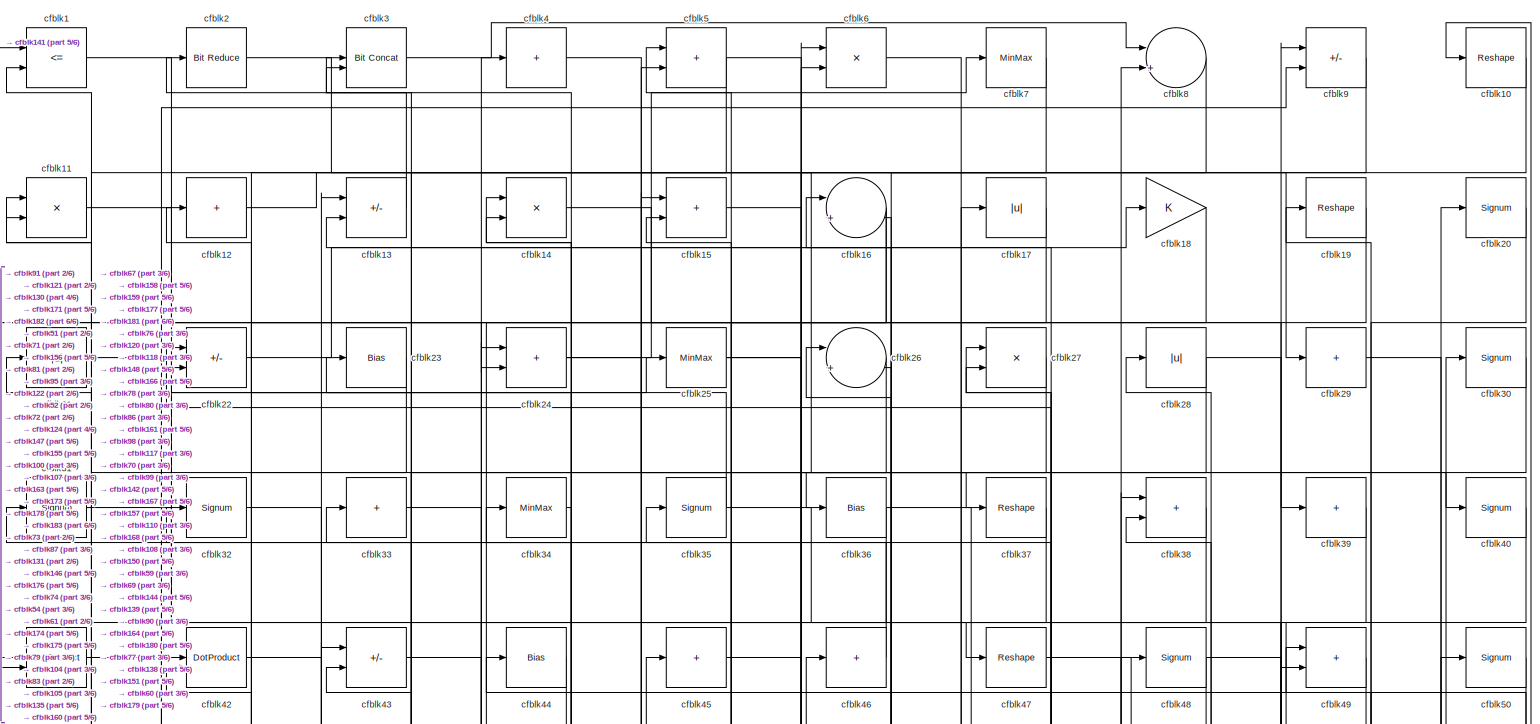
[diagram: root canvas - part 1/6, full width, top band]
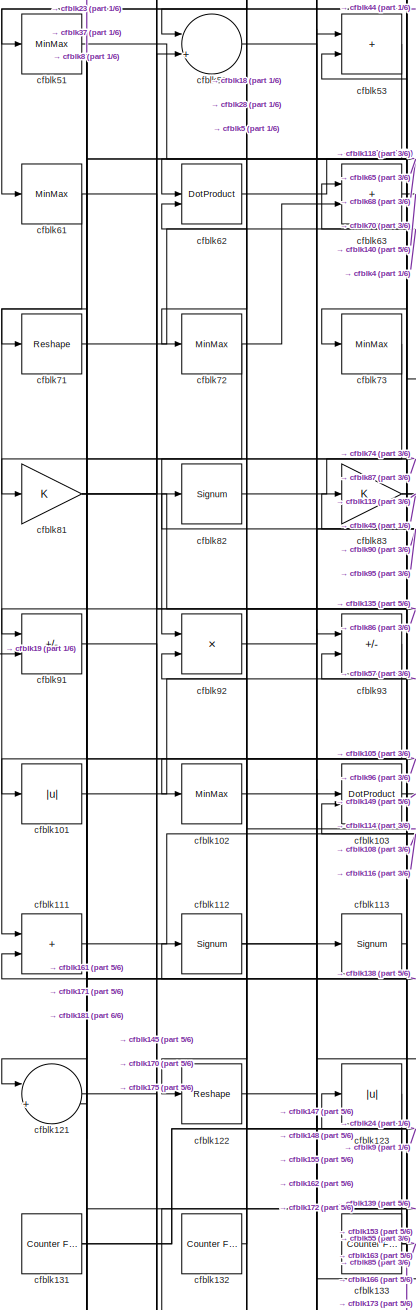
[diagram: root canvas - part 2/6, middle left region]
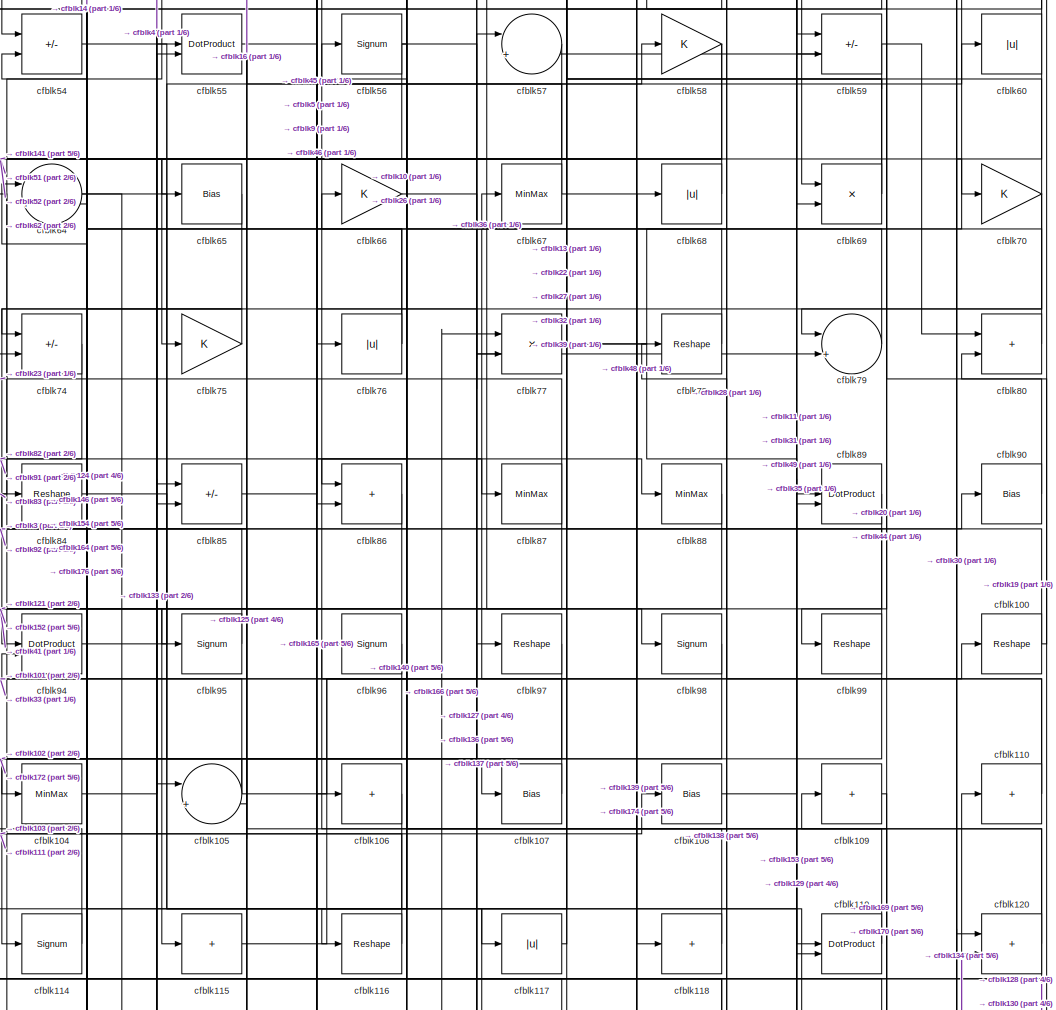
[diagram: root canvas - part 3/6, central region]
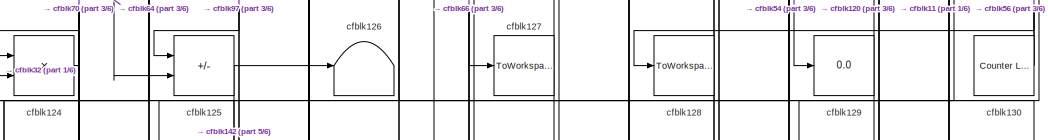
[diagram: root canvas - part 4/6, central region]
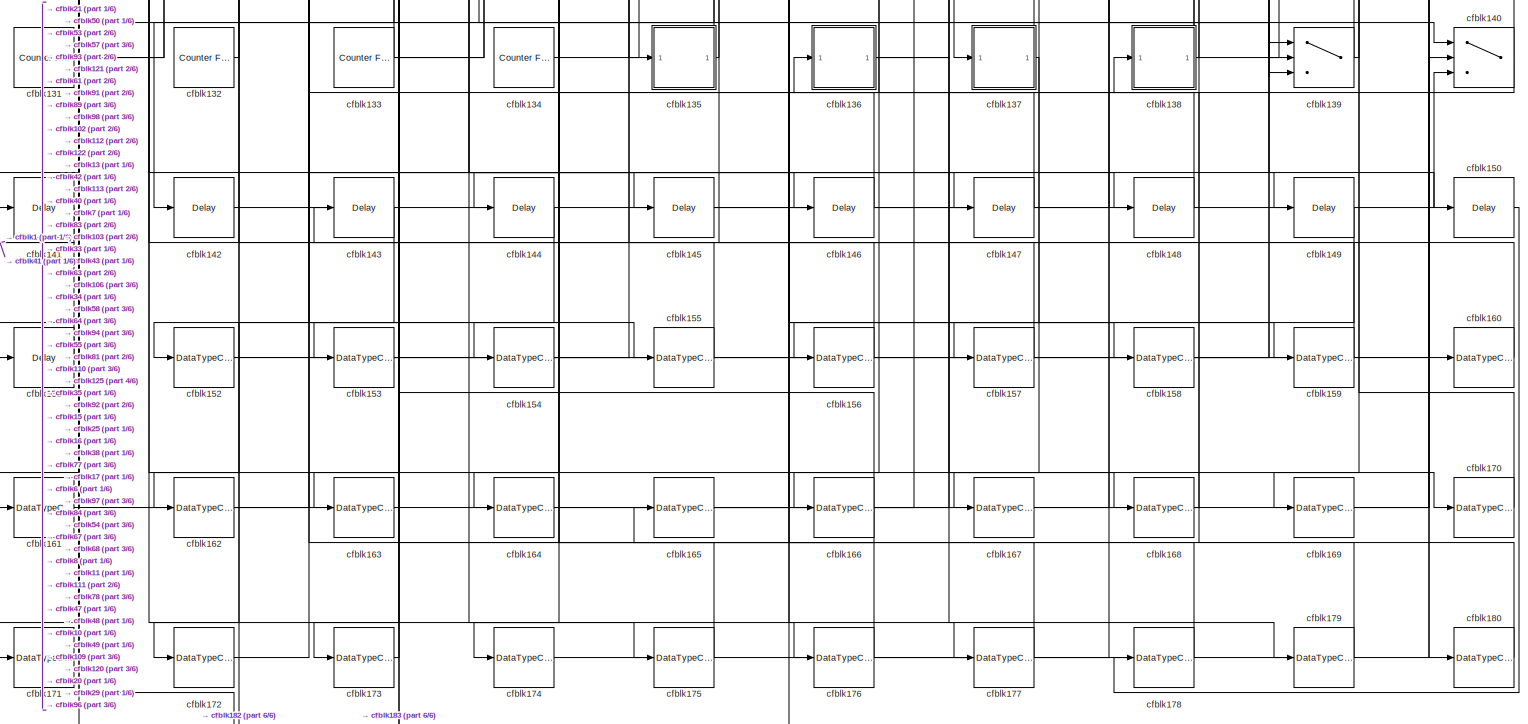
[diagram: root canvas - part 5/6, full width, bottom band]
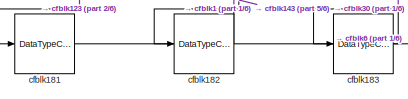
[diagram: root canvas - part 6/6, bottom left region]
MODEL slx_1db6b4678c98
KIND model
CONFIG AbsTol = auto
CONFIG EnableMultiTasking = off
CONFIG FixedStep = auto
CONFIG MaxStep = auto
CONFIG MinStep = auto
CONFIG RelTol = 1e-3
CONFIG SampleTimeConstraint = Unconstrained
CONFIG SolverName = VariableStepAuto
CONFIG StartTime = 0.0
CONFIG StopTime = 10.0
BLOCK [RelationalOperator] cfblk1
  InputSameDT = off
  Operator = <=
  OutDataTypeStr = boolean
BLOCK [Reshape] cfblk10
BLOCK [Reshape] cfblk100
BLOCK [Abs] cfblk101
  SaturateOnIntegerOverflow = off
BLOCK [MinMax] cfblk102
BLOCK [DotProduct] cfblk103
  OutDataTypeStr = Inherit: Inherit via internal rule
BLOCK [MinMax] cfblk104
BLOCK [Sum] cfblk105
  Inputs = |++
BLOCK [Sum] cfblk106
  IconShape = rectangular
  Inputs = +
BLOCK [Bias] cfblk107
  Bias = 0.0
  SaturateOnIntegerOverflow = off
BLOCK [Bias] cfblk108
  Bias = 0.0
  SaturateOnIntegerOverflow = off
BLOCK [Sum] cfblk109
  IconShape = rectangular
  Inputs = +
BLOCK [Product] cfblk11
  Inputs = */
  RndMeth = Zero
  SaturateOnIntegerOverflow = on
BLOCK [Sum] cfblk110
  IconShape = rectangular
  Inputs = +
BLOCK [Sum] cfblk111
  IconShape = rectangular
BLOCK [Signum] cfblk112
BLOCK [Signum] cfblk113
BLOCK [Signum] cfblk114
BLOCK [Sum] cfblk115
  IconShape = rectangular
  Inputs = +
BLOCK [Reshape] cfblk116
BLOCK [Abs] cfblk117
  SaturateOnIntegerOverflow = off
BLOCK [Sum] cfblk118
  IconShape = rectangular
  Inputs = +
BLOCK [DotProduct] cfblk119
  OutDataTypeStr = Inherit: Inherit via internal rule
BLOCK [Sum] cfblk12
  IconShape = rectangular
  Inputs = +
BLOCK [Sum] cfblk120
  IconShape = rectangular
BLOCK [Sum] cfblk121
  Inputs = |++
BLOCK [Reshape] cfblk122
BLOCK [Abs] cfblk123
  SaturateOnIntegerOverflow = off
BLOCK [Product] cfblk124
  Inputs = */
  RndMeth = Zero
  SaturateOnIntegerOverflow = on
BLOCK [Sum] cfblk125
  IconShape = rectangular
  Inputs = +-
BLOCK [Terminator] cfblk126
BLOCK [ToWorkspace] cfblk127
  MaxDataPoints = inf
  SampleTime = -1
  SaveFormat = Timeseries
  VariableName = simout
BLOCK [ToWorkspace] cfblk128
  MaxDataPoints = inf
  SampleTime = -1
  SaveFormat = Timeseries
  VariableName = simout
BLOCK [Display] cfblk129
  Decimation = 1
BLOCK [Sum] cfblk13
  IconShape = rectangular
  Inputs = +-
BLOCK [Reference] cfblk130  REF=hdlsllib/Sources/Counter
Limited
  SourceBlock = hdlsllib/Sources/Counter\nLimited
  SourceType = Counter Limited
BLOCK [Reference] cfblk131  REF=hdlsllib/Sources/Counter
Free-Running
  SourceBlock = hdlsllib/Sources/Counter\nFree-Running
  SourceType = Counter Free-Running
BLOCK [Reference] cfblk132  REF=hdlsllib/Sources/Counter
Free-Running
  SourceBlock = hdlsllib/Sources/Counter\nFree-Running
  SourceType = Counter Free-Running
BLOCK [Reference] cfblk133  REF=hdlsllib/Sources/Counter
Free-Running
  SourceBlock = hdlsllib/Sources/Counter\nFree-Running
  SourceType = Counter Free-Running
BLOCK [Reference] cfblk134  REF=hdlsllib/Sources/Counter
Free-Running
  SourceBlock = hdlsllib/Sources/Counter\nFree-Running
  SourceType = Counter Free-Running
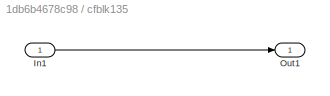
BLOCK [SubSystem] cfblk135
  LibrarySourceBlock = hdlsllib/Ports &\nSubsystems/Subsystem
BLOCK [Inport] cfblk135/In1
BLOCK [Outport] cfblk135/Out1
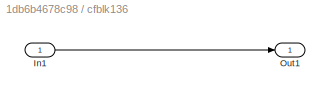
BLOCK [SubSystem] cfblk136
  LibrarySourceBlock = hdlsllib/Ports &\nSubsystems/Subsystem
BLOCK [Inport] cfblk136/In1
BLOCK [Outport] cfblk136/Out1
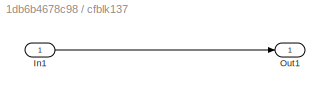
BLOCK [SubSystem] cfblk137
  LibrarySourceBlock = hdlsllib/Ports &\nSubsystems/Subsystem
BLOCK [Inport] cfblk137/In1
BLOCK [Outport] cfblk137/Out1
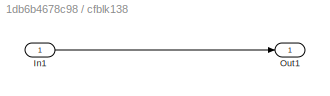
BLOCK [SubSystem] cfblk138
  LibrarySourceBlock = hdlsllib/Ports &\nSubsystems/Subsystem
BLOCK [Inport] cfblk138/In1
BLOCK [Outport] cfblk138/Out1
BLOCK [Switch] cfblk139
  InputSameDT = off
  SaturateOnIntegerOverflow = off
BLOCK [Product] cfblk14
  Inputs = */
  RndMeth = Zero
  SaturateOnIntegerOverflow = on
BLOCK [Switch] cfblk140
  InputSameDT = off
  SaturateOnIntegerOverflow = off
BLOCK [Delay] cfblk141
  InputPortMap = u0
  SampleTime = 1
BLOCK [Delay] cfblk142
  InputPortMap = u0
  SampleTime = 1
BLOCK [Delay] cfblk143
  InputPortMap = u0
  SampleTime = 1
BLOCK [Delay] cfblk144
  InputPortMap = u0
  SampleTime = 1
BLOCK [Delay] cfblk145
  InputPortMap = u0
  SampleTime = 1
BLOCK [Delay] cfblk146
  InputPortMap = u0
  SampleTime = 1
BLOCK [Delay] cfblk147
  InputPortMap = u0
  SampleTime = 1
BLOCK [Delay] cfblk148
  InputPortMap = u0
  SampleTime = 1
BLOCK [Delay] cfblk149
  InputPortMap = u0
  SampleTime = 1
BLOCK [Sum] cfblk15
  IconShape = rectangular
BLOCK [Delay] cfblk150
  InputPortMap = u0
  SampleTime = 1
BLOCK [Delay] cfblk151
  InputPortMap = u0
  SampleTime = 1
BLOCK [DataTypeConversion] cfblk152
  RndMeth = Floor
  SaturateOnIntegerOverflow = off
BLOCK [DataTypeConversion] cfblk153
  OutDataTypeStr = uint8
  RndMeth = Floor
  SaturateOnIntegerOverflow = off
BLOCK [DataTypeConversion] cfblk154
  OutDataTypeStr = uint8
  RndMeth = Floor
  SaturateOnIntegerOverflow = off
BLOCK [DataTypeConversion] cfblk155
  OutDataTypeStr = uint8
  RndMeth = Floor
  SaturateOnIntegerOverflow = off
BLOCK [DataTypeConversion] cfblk156
  OutDataTypeStr = uint8
  RndMeth = Floor
  SaturateOnIntegerOverflow = off
BLOCK [DataTypeConversion] cfblk157
  OutDataTypeStr = uint8
  RndMeth = Floor
  SaturateOnIntegerOverflow = off
BLOCK [DataTypeConversion] cfblk158
  OutDataTypeStr = uint8
  RndMeth = Floor
  SaturateOnIntegerOverflow = off
BLOCK [DataTypeConversion] cfblk159
  OutDataTypeStr = uint8
  RndMeth = Floor
  SaturateOnIntegerOverflow = off
BLOCK [Sum] cfblk16
  Inputs = |++
BLOCK [DataTypeConversion] cfblk160
  OutDataTypeStr = uint8
  RndMeth = Floor
  SaturateOnIntegerOverflow = off
BLOCK [DataTypeConversion] cfblk161
  OutDataTypeStr = uint8
  RndMeth = Floor
  SaturateOnIntegerOverflow = off
BLOCK [DataTypeConversion] cfblk162
  OutDataTypeStr = uint8
  RndMeth = Floor
  SaturateOnIntegerOverflow = off
BLOCK [DataTypeConversion] cfblk163
  OutDataTypeStr = uint8
  RndMeth = Floor
  SaturateOnIntegerOverflow = off
BLOCK [DataTypeConversion] cfblk164
  OutDataTypeStr = uint8
  RndMeth = Floor
  SaturateOnIntegerOverflow = off
BLOCK [DataTypeConversion] cfblk165
  OutDataTypeStr = uint8
  RndMeth = Floor
  SaturateOnIntegerOverflow = off
BLOCK [DataTypeConversion] cfblk166
  RndMeth = Floor
  SaturateOnIntegerOverflow = off
BLOCK [DataTypeConversion] cfblk167
  OutDataTypeStr = uint8
  RndMeth = Floor
  SaturateOnIntegerOverflow = off
BLOCK [DataTypeConversion] cfblk168
  OutDataTypeStr = uint8
  RndMeth = Floor
  SaturateOnIntegerOverflow = off
BLOCK [DataTypeConversion] cfblk169
  OutDataTypeStr = uint8
  RndMeth = Floor
  SaturateOnIntegerOverflow = off
BLOCK [Abs] cfblk17
  SaturateOnIntegerOverflow = off
BLOCK [DataTypeConversion] cfblk170
  OutDataTypeStr = uint8
  RndMeth = Floor
  SaturateOnIntegerOverflow = off
BLOCK [DataTypeConversion] cfblk171
  OutDataTypeStr = uint8
  RndMeth = Floor
  SaturateOnIntegerOverflow = off
BLOCK [DataTypeConversion] cfblk172
  OutDataTypeStr = uint8
  RndMeth = Floor
  SaturateOnIntegerOverflow = off
BLOCK [DataTypeConversion] cfblk173
  OutDataTypeStr = uint8
  RndMeth = Floor
  SaturateOnIntegerOverflow = off
BLOCK [DataTypeConversion] cfblk174
  OutDataTypeStr = uint8
  RndMeth = Floor
  SaturateOnIntegerOverflow = off
BLOCK [DataTypeConversion] cfblk175
  OutDataTypeStr = uint8
  RndMeth = Floor
  SaturateOnIntegerOverflow = off
BLOCK [DataTypeConversion] cfblk176
  RndMeth = Floor
  SaturateOnIntegerOverflow = off
BLOCK [DataTypeConversion] cfblk177
  OutDataTypeStr = uint8
  RndMeth = Floor
  SaturateOnIntegerOverflow = off
BLOCK [DataTypeConversion] cfblk178
  OutDataTypeStr = uint8
  RndMeth = Floor
  SaturateOnIntegerOverflow = off
BLOCK [DataTypeConversion] cfblk179
  OutDataTypeStr = uint8
  RndMeth = Floor
  SaturateOnIntegerOverflow = off
BLOCK [Gain] cfblk18
BLOCK [DataTypeConversion] cfblk180
  OutDataTypeStr = uint8
  RndMeth = Floor
  SaturateOnIntegerOverflow = off
BLOCK [DataTypeConversion] cfblk181
  OutDataTypeStr = uint8
  RndMeth = Floor
  SaturateOnIntegerOverflow = off
BLOCK [DataTypeConversion] cfblk182
  OutDataTypeStr = uint8
  RndMeth = Floor
  SaturateOnIntegerOverflow = off
BLOCK [DataTypeConversion] cfblk183
  OutDataTypeStr = uint8
  RndMeth = Floor
  SaturateOnIntegerOverflow = off
BLOCK [Reshape] cfblk19
BLOCK [Reference] cfblk2  REF=hdlsllib/Logic and Bit
Operations/Bit Reduce
  SourceBlock = hdlsllib/Logic and Bit\nOperations/Bit Reduce
  SourceType = Bit Reduce
BLOCK [Signum] cfblk20
BLOCK [Abs] cfblk21
  SaturateOnIntegerOverflow = off
BLOCK [Sum] cfblk22
  IconShape = rectangular
  Inputs = +-
BLOCK [Bias] cfblk23
  Bias = 0.0
  SaturateOnIntegerOverflow = off
BLOCK [Sum] cfblk24
  IconShape = rectangular
BLOCK [MinMax] cfblk25
BLOCK [Sum] cfblk26
  Inputs = |++
BLOCK [Product] cfblk27
  Inputs = */
  RndMeth = Zero
  SaturateOnIntegerOverflow = on
BLOCK [Abs] cfblk28
  SaturateOnIntegerOverflow = off
BLOCK [Sum] cfblk29
  IconShape = rectangular
  Inputs = +
BLOCK [Reference] cfblk3  REF=hdlsllib/Logic and Bit
Operations/Bit Concat
  SourceBlock = hdlsllib/Logic and Bit\nOperations/Bit Concat
  SourceType = Bit Concat
BLOCK [Signum] cfblk30
BLOCK [Signum] cfblk31
BLOCK [Signum] cfblk32
BLOCK [Sum] cfblk33
  IconShape = rectangular
  Inputs = +
BLOCK [MinMax] cfblk34
BLOCK [Signum] cfblk35
BLOCK [Bias] cfblk36
  Bias = 0.0
  SaturateOnIntegerOverflow = off
BLOCK [Reshape] cfblk37
BLOCK [Sum] cfblk38
  IconShape = rectangular
BLOCK [Sum] cfblk39
  IconShape = rectangular
  Inputs = +
BLOCK [Sum] cfblk4
  IconShape = rectangular
  Inputs = +
BLOCK [Signum] cfblk40
BLOCK [DotProduct] cfblk41
  OutDataTypeStr = Inherit: Inherit via internal rule
BLOCK [DotProduct] cfblk42
  OutDataTypeStr = Inherit: Inherit via internal rule
BLOCK [Sum] cfblk43
  IconShape = rectangular
  Inputs = +-
BLOCK [Bias] cfblk44
  Bias = 0.0
  SaturateOnIntegerOverflow = off
BLOCK [Sum] cfblk45
  IconShape = rectangular
  Inputs = +
BLOCK [Sum] cfblk46
  IconShape = rectangular
  Inputs = +
BLOCK [Reshape] cfblk47
BLOCK [Signum] cfblk48
BLOCK [Sum] cfblk49
  IconShape = rectangular
BLOCK [Sum] cfblk5
  IconShape = rectangular
BLOCK [Signum] cfblk50
BLOCK [MinMax] cfblk51
BLOCK [Sum] cfblk52
  Inputs = |++
BLOCK [Sum] cfblk53
  IconShape = rectangular
BLOCK [Sum] cfblk54
  IconShape = rectangular
  Inputs = +-
BLOCK [DotProduct] cfblk55
  OutDataTypeStr = Inherit: Inherit via internal rule
BLOCK [Signum] cfblk56
BLOCK [Sum] cfblk57
  Inputs = |++
BLOCK [Gain] cfblk58
BLOCK [Sum] cfblk59
  IconShape = rectangular
  Inputs = +-
BLOCK [Product] cfblk6
  Inputs = */
  RndMeth = Zero
  SaturateOnIntegerOverflow = on
BLOCK [Abs] cfblk60
  SaturateOnIntegerOverflow = off
BLOCK [MinMax] cfblk61
BLOCK [DotProduct] cfblk62
  OutDataTypeStr = Inherit: Inherit via internal rule
BLOCK [Sum] cfblk63
  IconShape = rectangular
BLOCK [Sum] cfblk64
  Inputs = |++
BLOCK [Bias] cfblk65
  Bias = 0.0
  SaturateOnIntegerOverflow = off
BLOCK [Gain] cfblk66
BLOCK [MinMax] cfblk67
BLOCK [Abs] cfblk68
  SaturateOnIntegerOverflow = off
BLOCK [Product] cfblk69
  Inputs = */
  RndMeth = Zero
  SaturateOnIntegerOverflow = on
BLOCK [MinMax] cfblk7
BLOCK [Gain] cfblk70
BLOCK [Reshape] cfblk71
BLOCK [MinMax] cfblk72
BLOCK [MinMax] cfblk73
BLOCK [Sum] cfblk74
  IconShape = rectangular
  Inputs = +-
BLOCK [Gain] cfblk75
BLOCK [Abs] cfblk76
  SaturateOnIntegerOverflow = off
BLOCK [Product] cfblk77
  Inputs = */
  RndMeth = Zero
  SaturateOnIntegerOverflow = on
BLOCK [Reshape] cfblk78
BLOCK [Sum] cfblk79
  Inputs = |++
BLOCK [Sum] cfblk8
  Inputs = |++
BLOCK [Sum] cfblk80
  IconShape = rectangular
BLOCK [Gain] cfblk81
BLOCK [Signum] cfblk82
BLOCK [Gain] cfblk83
BLOCK [Reshape] cfblk84
BLOCK [Sum] cfblk85
  IconShape = rectangular
  Inputs = +-
BLOCK [Sum] cfblk86
  IconShape = rectangular
BLOCK [MinMax] cfblk87
BLOCK [MinMax] cfblk88
BLOCK [DotProduct] cfblk89
  OutDataTypeStr = Inherit: Inherit via internal rule
BLOCK [Sum] cfblk9
  IconShape = rectangular
  Inputs = +-
BLOCK [Bias] cfblk90
  Bias = 0.0
  SaturateOnIntegerOverflow = off
BLOCK [Sum] cfblk91
  IconShape = rectangular
  Inputs = +-
BLOCK [Product] cfblk92
  Inputs = */
  RndMeth = Zero
  SaturateOnIntegerOverflow = on
BLOCK [Sum] cfblk93
  IconShape = rectangular
  Inputs = +-
BLOCK [DotProduct] cfblk94
  OutDataTypeStr = Inherit: Inherit via internal rule
BLOCK [Signum] cfblk95
BLOCK [Signum] cfblk96
BLOCK [Reshape] cfblk97
BLOCK [Signum] cfblk98
BLOCK [Reshape] cfblk99
NET cfblk100:1 -> cfblk3:1, cfblk80:2
LINE cfblk101:1 -> cfblk57:1
LINE cfblk102:1 -> cfblk148:1
LINE cfblk103:1 -> cfblk149:1
LINE cfblk104:1 -> cfblk5:2
NET cfblk105:1 -> cfblk101:1, cfblk14:1, cfblk48:1
LINE cfblk106:1 -> cfblk164:1
LINE cfblk107:1 -> cfblk33:1
LINE cfblk108:1 -> cfblk49:2
LINE cfblk109:1 -> cfblk169:1
LINE cfblk10:1 -> cfblk86:1
NET cfblk110:1 -> cfblk28:1, cfblk67:1
LINE cfblk111:1 -> cfblk108:1
NET cfblk112:1 -> cfblk113:1, cfblk139:2
LINE cfblk113:1 -> cfblk153:1
LINE cfblk114:1 -> cfblk62:2
LINE cfblk115:1 -> cfblk100:1
LINE cfblk116:1 -> cfblk103:2
LINE cfblk117:1 -> cfblk27:1
LINE cfblk118:1 -> cfblk16:1
LINE cfblk119:1 -> cfblk66:1
LINE cfblk11:1 -> cfblk59:1
NET cfblk120:1 -> cfblk128:1, cfblk46:1, cfblk84:1
LINE cfblk121:1 -> cfblk170:1
LINE cfblk122:1 -> cfblk147:1
LINE cfblk123:1 -> cfblk181:1
LINE cfblk124:1 -> cfblk64:2
NET cfblk125:1 -> cfblk126:1, cfblk142:1
LINE cfblk12:1 -> cfblk37:1
NET cfblk130:1 -> cfblk11:1, cfblk56:1
NET cfblk131:1 -> cfblk24:1, cfblk9:1
LINE cfblk132:1 -> cfblk112:1
NET cfblk133:1 -> cfblk123:1, cfblk55:2, cfblk85:1
LINE cfblk134:1 -> cfblk110:1
LINE cfblk135/In1:1 -> cfblk135/Out1:1
NET cfblk135:1 -> cfblk35:1, cfblk92:2
LINE cfblk136/In1:1 -> cfblk136/Out1:1
NET cfblk136:1 -> cfblk168:1, cfblk97:1
LINE cfblk137/In1:1 -> cfblk137/Out1:1
NET cfblk137:1 -> cfblk167:1, cfblk54:2
LINE cfblk138/In1:1 -> cfblk138/Out1:1
NET cfblk138:1 -> cfblk10:1, cfblk111:2, cfblk11:2, cfblk78:1
NET cfblk139:1 -> cfblk49:1, cfblk63:1
LINE cfblk13:1 -> cfblk2:1
NET cfblk140:1 -> cfblk136:1, cfblk96:1
LINE cfblk141:1 -> cfblk1:1
LINE cfblk142:1 -> cfblk8:2
LINE cfblk143:1 -> cfblk182:1
LINE cfblk144:1 -> cfblk162:1
LINE cfblk145:1 -> cfblk140:3
LINE cfblk146:1 -> cfblk64:1
LINE cfblk147:1 -> cfblk13:1
LINE cfblk148:1 -> cfblk16:2
LINE cfblk149:1 -> cfblk156:1
LINE cfblk14:1 -> cfblk69:2
LINE cfblk150:1 -> cfblk178:1
LINE cfblk151:1 -> cfblk41:1
NET cfblk152:1 -> cfblk120:1, cfblk55:1
LINE cfblk153:1 -> cfblk89:1
LINE cfblk154:1 -> cfblk89:2
LINE cfblk155:1 -> cfblk103:1
LINE cfblk156:1 -> cfblk42:1
LINE cfblk157:1 -> cfblk42:2
LINE cfblk158:1 -> cfblk50:1
LINE cfblk159:1 -> cfblk15:1
LINE cfblk15:1 -> cfblk158:1
LINE cfblk160:1 -> cfblk15:2
LINE cfblk161:1 -> cfblk17:1
LINE cfblk162:1 -> cfblk53:1
LINE cfblk163:1 -> cfblk53:2
LINE cfblk164:1 -> cfblk20:1
LINE cfblk165:1 -> cfblk106:1
NET cfblk166:1 -> cfblk165:1, cfblk77:1, cfblk83:1
LINE cfblk167:1 -> cfblk38:1
LINE cfblk168:1 -> cfblk38:2
LINE cfblk169:1 -> cfblk140:2
NET cfblk16:1 -> cfblk105:2, cfblk54:1
LINE cfblk170:1 -> cfblk109:1
LINE cfblk171:1 -> cfblk21:1
LINE cfblk172:1 -> cfblk93:1
LINE cfblk173:1 -> cfblk93:2
LINE cfblk174:1 -> cfblk68:1
LINE cfblk175:1 -> cfblk34:1
NET cfblk176:1 -> cfblk160:1, cfblk94:2
LINE cfblk177:1 -> cfblk43:1
LINE cfblk178:1 -> cfblk43:2
LINE cfblk179:1 -> cfblk138:1
LINE cfblk17:1 -> cfblk41:2
LINE cfblk180:1 -> cfblk6:1
LINE cfblk181:1 -> cfblk6:2
LINE cfblk182:1 -> cfblk1:2
LINE cfblk183:1 -> cfblk143:1
LINE cfblk18:1 -> cfblk122:1
LINE cfblk19:1 -> cfblk91:2
LINE cfblk1:1 -> cfblk24:2
LINE cfblk20:1 -> cfblk99:1
LINE cfblk21:1 -> cfblk47:1
LINE cfblk22:1 -> cfblk18:1
LINE cfblk23:1 -> cfblk121:1
NET cfblk24:1 -> cfblk40:1, cfblk7:1
NET cfblk25:1 -> cfblk159:1, cfblk177:1
LINE cfblk26:1 -> cfblk36:1
LINE cfblk27:1 -> cfblk73:1
NET cfblk28:1 -> cfblk39:1, cfblk72:1
LINE cfblk29:1 -> cfblk180:1
LINE cfblk2:1 -> cfblk29:1
LINE cfblk30:1 -> cfblk183:1
LINE cfblk31:1 -> cfblk59:2
LINE cfblk32:1 -> cfblk124:2
LINE cfblk33:1 -> cfblk146:1
LINE cfblk34:1 -> cfblk174:1
NET cfblk35:1 -> cfblk12:1, cfblk69:1
NET cfblk36:1 -> cfblk74:2, cfblk98:1
LINE cfblk37:1 -> cfblk71:1
LINE cfblk38:1 -> cfblk166:1
LINE cfblk39:1 -> cfblk117:1
LINE cfblk3:1 -> cfblk8:1
LINE cfblk40:1 -> cfblk173:1
NET cfblk41:1 -> cfblk25:1, cfblk95:1
LINE cfblk42:1 -> cfblk155:1
LINE cfblk43:1 -> cfblk176:1
LINE cfblk44:1 -> cfblk61:1
LINE cfblk45:1 -> cfblk77:2
LINE cfblk46:1 -> cfblk31:1
LINE cfblk47:1 -> cfblk139:1
NET cfblk48:1 -> cfblk150:1, cfblk157:1
LINE cfblk49:1 -> cfblk144:1
LINE cfblk4:1 -> cfblk105:1
LINE cfblk50:1 -> cfblk151:1
LINE cfblk51:1 -> cfblk118:1
LINE cfblk52:1 -> cfblk65:1
LINE cfblk53:1 -> cfblk161:1
LINE cfblk54:1 -> cfblk129:1
LINE cfblk55:1 -> cfblk88:1
NET cfblk56:1 -> cfblk116:1, cfblk75:1, cfblk79:2
LINE cfblk57:1 -> cfblk141:1
NET cfblk58:1 -> cfblk154:1, cfblk85:2
NET cfblk59:1 -> cfblk57:2, cfblk80:1
NET cfblk5:1 -> cfblk52:1, cfblk76:1
NET cfblk60:1 -> cfblk120:2, cfblk19:1
NET cfblk61:1 -> cfblk111:1, cfblk145:1
LINE cfblk62:1 -> cfblk70:1
LINE cfblk63:1 -> cfblk140:1
NET cfblk64:1 -> cfblk107:1, cfblk125:2
LINE cfblk65:1 -> cfblk94:1
LINE cfblk66:1 -> cfblk127:1
NET cfblk67:1 -> cfblk139:3, cfblk5:1
LINE cfblk68:1 -> cfblk62:1
NET cfblk69:1 -> cfblk13:2, cfblk22:2
LINE cfblk6:1 -> cfblk179:1
NET cfblk70:1 -> cfblk124:1, cfblk32:1, cfblk79:1
LINE cfblk71:1 -> cfblk4:1
NET cfblk72:1 -> cfblk63:2, cfblk81:1
LINE cfblk73:1 -> cfblk92:1
LINE cfblk74:1 -> cfblk91:1
LINE cfblk75:1 -> cfblk74:1
NET cfblk76:1 -> cfblk14:2, cfblk3:2
NET cfblk77:1 -> cfblk119:1, cfblk30:1
LINE cfblk78:1 -> cfblk26:1
LINE cfblk79:1 -> cfblk22:1
LINE cfblk7:1 -> cfblk163:1
LINE cfblk80:1 -> cfblk26:2
NET cfblk81:1 -> cfblk135:1, cfblk52:2, cfblk9:2
LINE cfblk82:1 -> cfblk87:1
NET cfblk83:1 -> cfblk119:2, cfblk45:1
LINE cfblk84:1 -> cfblk137:1
LINE cfblk85:1 -> cfblk60:1
LINE cfblk86:1 -> cfblk121:2
NET cfblk87:1 -> cfblk104:1, cfblk23:1
LINE cfblk88:1 -> cfblk115:1
LINE cfblk89:1 -> cfblk152:1
LINE cfblk8:1 -> cfblk51:1
LINE cfblk90:1 -> cfblk44:1
LINE cfblk91:1 -> cfblk175:1
LINE cfblk92:1 -> cfblk90:1
LINE cfblk93:1 -> cfblk171:1
LINE cfblk94:1 -> cfblk58:1
LINE cfblk95:1 -> cfblk82:1
LINE cfblk96:1 -> cfblk102:1
LINE cfblk97:1 -> cfblk125:1
LINE cfblk98:1 -> cfblk172:1
NET cfblk99:1 -> cfblk114:1, cfblk27:2
LINE cfblk9:1 -> cfblk86:2
note: NET lines group one-source signal fan-out (src -> all destinations, sorted); 1:1 wires keep LINE
